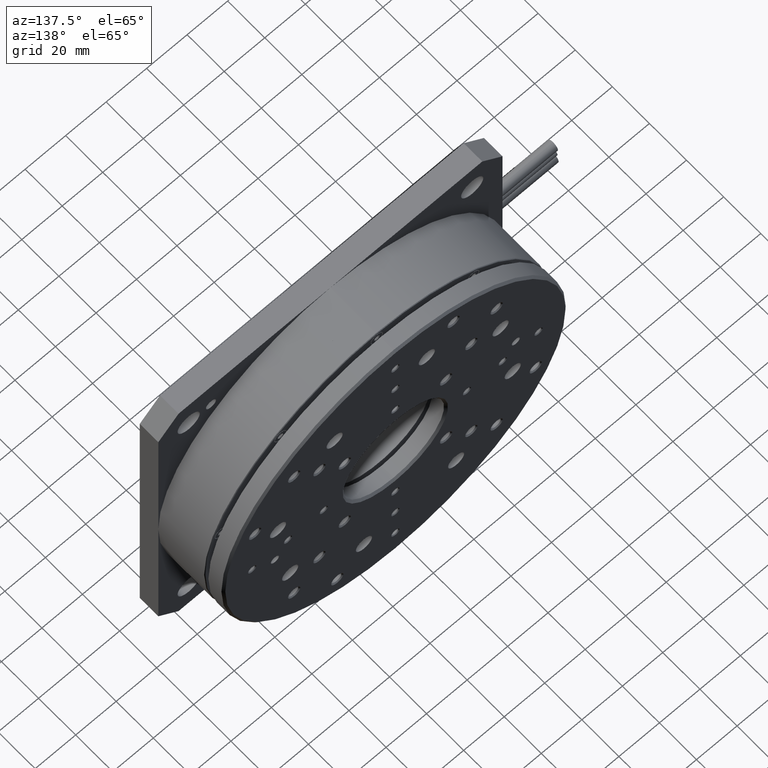
[diagram: clean part render]
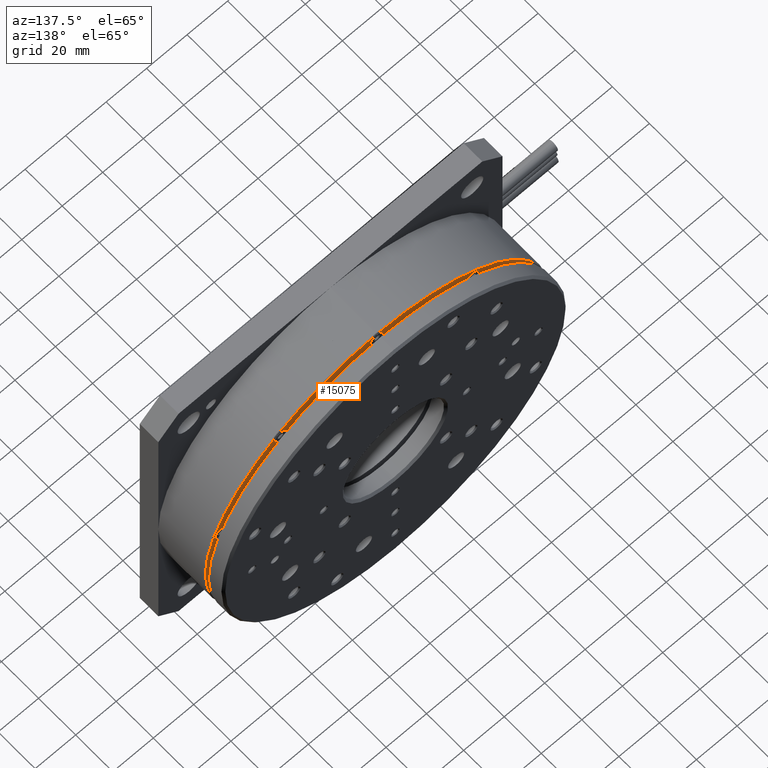
[diagram: same view with one face highlighted and labeled with its STEP entity id]
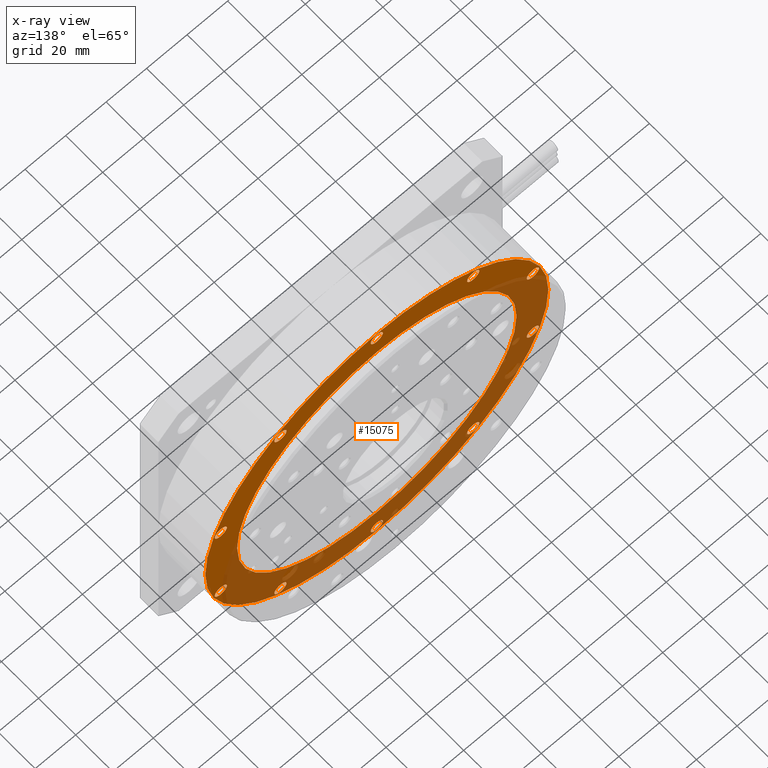
[diagram: x-ray of the same camera — body ghosted, the highlighted face saturated]
A machine part, auxiliary view. The second image highlights one B-rep face of the part: STEP entity #15075.
The next image is the same camera in x-ray: the body ghosted, the highlighted face saturated — about 53% of this face is hidden behind the body in this view.
In plain terms, the highlighted planar face has unit normal (0, 1, 0).
Its self-contained STEP definition (entity closure, byte-faithful):
#42 = CARTESIAN_POINT ( 'NONE',  ( 132.6106054356894800, 35.00000000000000000, 22.46962345562863900 ) ) ;
#114 = DIRECTION ( 'NONE',  ( 0.0000000000000000000, 0.0000000000000000000, 1.000000000000000000 ) ) ;
#166 = VERTEX_POINT ( 'NONE', #42 ) ;
#174 = ORIENTED_EDGE ( 'NONE', *, *, #9739, .T. ) ;
#188 = CARTESIAN_POINT ( 'NONE',  ( 37.38939456431005200, 35.00000000000000000, 150.5303765443710200 ) ) ;
#335 = EDGE_CURVE ( 'NONE', #166, #18073, #9037, .T. ) ;
#392 = DIRECTION ( 'NONE',  ( 0.0000000000000000000, -1.000000000000000000, 0.0000000000000000000 ) ) ;
#424 = CARTESIAN_POINT ( 'NONE',  ( 85.00000000000000000, 35.00000000000000700, 85.00000000000000000 ) ) ;
#625 = VERTEX_POINT ( 'NONE', #8596 ) ;
#654 = FACE_BOUND ( 'NONE', #20036, .T. ) ;
#681 = ORIENTED_EDGE ( 'NONE', *, *, #13291, .T. ) ;
#910 = AXIS2_PLACEMENT_3D ( 'NONE', #424, #9381, #7471 ) ;
#1043 = EDGE_LOOP ( 'NONE', ( #5700, #6435 ) ) ;
#1310 = CIRCLE ( 'NONE', #21538, 3.000000000000002700 ) ;
#1471 = CARTESIAN_POINT ( 'NONE',  ( 85.00000000000000000, 35.00000000000000000, 7.000000000000006200 ) ) ;
#1492 = AXIS2_PLACEMENT_3D ( 'NONE', #19620, #3647, #19853 ) ;
#1564 = DIRECTION ( 'NONE',  ( 0.0000000000000000000, 0.0000000000000000000, 1.000000000000000000 ) ) ;
#1711 = DIRECTION ( 'NONE',  ( 0.0000000000000000000, -1.000000000000000000, 0.0000000000000000000 ) ) ;
#1749 = CARTESIAN_POINT ( 'NONE',  ( 85.00000000000000000, 35.00000000000000000, 1.000000000000000900 ) ) ;
#1754 = CARTESIAN_POINT ( 'NONE',  ( 85.00000000000001400, 35.00000000000000000, 154.0000000000000000 ) ) ;
#1903 = EDGE_CURVE ( 'NONE', #13867, #19990, #15441, .T. ) ;
#1921 = CARTESIAN_POINT ( 'NONE',  ( 85.00000000000000000, 35.00000000000000700, 85.00000000000000000 ) ) ;
#1957 = CARTESIAN_POINT ( 'NONE',  ( 7.964422180092467900, 35.00000000000000000, 59.96962345562948100 ) ) ;
#2313 = CARTESIAN_POINT ( 'NONE',  ( 37.38939456430958300, 35.00000000000000000, 19.46962345562931800 ) ) ;
#2473 = CARTESIAN_POINT ( 'NONE',  ( 37.38939456431005200, 35.00000000000000000, 153.5303765443710200 ) ) ;
#2631 = EDGE_CURVE ( 'NONE', #13775, #10596, #12822, .T. ) ;
#2716 = DIRECTION ( 'NONE',  ( 0.0000000000000000000, -1.000000000000000000, 0.0000000000000000000 ) ) ;
#2752 = CARTESIAN_POINT ( 'NONE',  ( 162.0355778199071900, 35.00000000000000000, 56.96962345562838700 ) ) ;
#2755 = CARTESIAN_POINT ( 'NONE',  ( 85.00000000000000000, 35.00000000000000000, 4.000000000000003600 ) ) ;
#2836 = EDGE_CURVE ( 'NONE', #22200, #17229, #14220, .T. ) ;
#2863 = EDGE_LOOP ( 'NONE', ( #681, #14153 ) ) ;
#2969 = AXIS2_PLACEMENT_3D ( 'NONE', #3147, #19588, #8588 ) ;
#3147 = CARTESIAN_POINT ( 'NONE',  ( 37.38939456430958300, 35.00000000000000000, 19.46962345562931800 ) ) ;
#3180 = AXIS2_PLACEMENT_3D ( 'NONE', #5084, #14014, #8585 ) ;
#3451 = FACE_BOUND ( 'NONE', #19944, .T. ) ;
#3523 = DIRECTION ( 'NONE',  ( 0.0000000000000000000, 0.0000000000000000000, 1.000000000000000000 ) ) ;
#3609 = ORIENTED_EDGE ( 'NONE', *, *, #1903, .T. ) ;
#3647 = DIRECTION ( 'NONE',  ( -0.0000000000000000000, -1.000000000000000000, -0.0000000000000000000 ) ) ;
#3691 = DIRECTION ( 'NONE',  ( 0.0000000000000000000, 0.0000000000000000000, 1.000000000000000000 ) ) ;
#3854 = DIRECTION ( 'NONE',  ( 0.0000000000000000000, -1.000000000000000000, 0.0000000000000000000 ) ) ;
#3955 = CARTESIAN_POINT ( 'NONE',  ( 7.964422180092467900, 35.00000000000000000, 59.96962345562948100 ) ) ;
#3962 = CIRCLE ( 'NONE', #14630, 3.000000000000009800 ) ;
#4104 = DIRECTION ( 'NONE',  ( 0.0000000000000000000, 0.0000000000000000000, 1.000000000000000000 ) ) ;
#4278 = DIRECTION ( 'NONE',  ( 0.0000000000000000000, 0.0000000000000000000, 1.000000000000000000 ) ) ;
#4790 = CIRCLE ( 'NONE', #16994, 3.000000000000002700 ) ;
#4904 = AXIS2_PLACEMENT_3D ( 'NONE', #21470, #1711, #3691 ) ;
#5084 = CARTESIAN_POINT ( 'NONE',  ( 162.0355778199076700, 35.00000000000000000, 110.0303765443700000 ) ) ;
#5387 = CARTESIAN_POINT ( 'NONE',  ( 162.0355778199071900, 35.00000000000000000, 59.96962345562838700 ) ) ;
#5414 = FACE_BOUND ( 'NONE', #5505, .T. ) ;
#5476 = EDGE_CURVE ( 'NONE', #17229, #22200, #7657, .T. ) ;
#5505 = EDGE_LOOP ( 'NONE', ( #20101, #11369 ) ) ;
#5676 = FACE_BOUND ( 'NONE', #2863, .T. ) ;
#5700 = ORIENTED_EDGE ( 'NONE', *, *, #8466, .T. ) ;
#6019 = EDGE_CURVE ( 'NONE', #18073, #166, #16535, .T. ) ;
#6052 = DIRECTION ( 'NONE',  ( 0.0000000000000000000, -1.000000000000000000, 0.0000000000000000000 ) ) ;
#6079 = ORIENTED_EDGE ( 'NONE', *, *, #13419, .T. ) ;
#6124 = EDGE_CURVE ( 'NONE', #14083, #18327, #13635, .T. ) ;
#6176 = DIRECTION ( 'NONE',  ( -0.0000000000000000000, -1.000000000000000000, -0.0000000000000000000 ) ) ;
#6214 = DIRECTION ( 'NONE',  ( 0.0000000000000000000, -0.0000000000000000000, 1.000000000000000000 ) ) ;
#6281 = AXIS2_PLACEMENT_3D ( 'NONE', #1957, #3854, #7448 ) ;
#6365 = DIRECTION ( 'NONE',  ( 0.0000000000000000000, 0.0000000000000000000, 1.000000000000000000 ) ) ;
#6435 = ORIENTED_EDGE ( 'NONE', *, *, #15240, .T. ) ;
#6885 = CARTESIAN_POINT ( 'NONE',  ( 162.0355778199076700, 35.00000000000000000, 107.0303765443700000 ) ) ;
#7006 = ORIENTED_EDGE ( 'NONE', *, *, #2836, .T. ) ;
#7055 = CARTESIAN_POINT ( 'NONE',  ( 132.6106054356909300, 35.00000000000000000, 147.5303765443703400 ) ) ;
#7090 = DIRECTION ( 'NONE',  ( 0.0000000000000000000, 0.0000000000000000000, -1.000000000000000000 ) ) ;
#7101 = CIRCLE ( 'NONE', #910, 84.70000000000004500 ) ;
#7108 = CARTESIAN_POINT ( 'NONE',  ( 7.964422180092661600, 35.00000000000000000, 110.0303765443710900 ) ) ;
#7141 = CARTESIAN_POINT ( 'NONE',  ( 85.00000000000000000, 35.00000000000000000, 4.000000000000003600 ) ) ;
#7168 = CARTESIAN_POINT ( 'NONE',  ( 85.00000000000000000, 35.00000000000000000, 166.0000000000000000 ) ) ;
#7171 = ORIENTED_EDGE ( 'NONE', *, *, #14726, .F. ) ;
#7448 = DIRECTION ( 'NONE',  ( 0.0000000000000000000, 0.0000000000000000000, 1.000000000000000000 ) ) ;
#7471 = DIRECTION ( 'NONE',  ( 0.0000000000000000000, 0.0000000000000000000, -1.000000000000000000 ) ) ;
#7625 = ORIENTED_EDGE ( 'NONE', *, *, #21575, .T. ) ;
#7632 = CARTESIAN_POINT ( 'NONE',  ( 85.00000000000000000, 35.00000000000000000, 169.0000000000000000 ) ) ;
#7657 = CIRCLE ( 'NONE', #1492, 68.99999999999998600 ) ;
#7717 = AXIS2_PLACEMENT_3D ( 'NONE', #16592, #6176, #18416 ) ;
#7724 = CIRCLE ( 'NONE', #15640, 3.000000000000002700 ) ;
#7859 = DIRECTION ( 'NONE',  ( 0.0000000000000000000, -1.000000000000000000, 0.0000000000000000000 ) ) ;
#7997 = EDGE_CURVE ( 'NONE', #10596, #13775, #16032, .T. ) ;
#8054 = CARTESIAN_POINT ( 'NONE',  ( 162.0355778199076700, 35.00000000000000000, 113.0303765443700100 ) ) ;
#8256 = VERTEX_POINT ( 'NONE', #2752 ) ;
#8466 = EDGE_CURVE ( 'NONE', #15475, #8256, #3962, .T. ) ;
#8469 = EDGE_LOOP ( 'NONE', ( #9625, #3609 ) ) ;
#8525 = CIRCLE ( 'NONE', #18114, 3.000000000000002700 ) ;
#8585 = DIRECTION ( 'NONE',  ( 0.0000000000000000000, 0.0000000000000000000, 1.000000000000000000 ) ) ;
#8588 = DIRECTION ( 'NONE',  ( 0.0000000000000000000, 0.0000000000000000000, 1.000000000000000000 ) ) ;
#8596 = CARTESIAN_POINT ( 'NONE',  ( 85.00000000000000000, 35.00000000000000000, 163.0000000000000000 ) ) ;
#8654 = CARTESIAN_POINT ( 'NONE',  ( 37.38939456430958300, 35.00000000000000000, 16.46962345562931400 ) ) ;
#8662 = ORIENTED_EDGE ( 'NONE', *, *, #5476, .T. ) ;
#8929 = CARTESIAN_POINT ( 'NONE',  ( 85.00000000000000000, 35.00000000000000700, 0.2999999999999669600 ) ) ;
#8949 = AXIS2_PLACEMENT_3D ( 'NONE', #2755, #16923, #13232 ) ;
#9037 = CIRCLE ( 'NONE', #16615, 3.000000000000002700 ) ;
#9250 = EDGE_LOOP ( 'NONE', ( #19105, #16647 ) ) ;
#9381 = DIRECTION ( 'NONE',  ( 0.0000000000000000000, -1.000000000000000000, 0.0000000000000000000 ) ) ;
#9526 = ORIENTED_EDGE ( 'NONE', *, *, #6124, .T. ) ;
#9625 = ORIENTED_EDGE ( 'NONE', *, *, #9914, .T. ) ;
#9734 = VERTEX_POINT ( 'NONE', #6885 ) ;
#9739 = EDGE_CURVE ( 'NONE', #11522, #23106, #14476, .T. ) ;
#9888 = ORIENTED_EDGE ( 'NONE', *, *, #6019, .T. ) ;
#9914 = EDGE_CURVE ( 'NONE', #19990, #13867, #17285, .T. ) ;
#10196 = CARTESIAN_POINT ( 'NONE',  ( 132.6106054356909300, 35.00000000000000000, 150.5303765443703400 ) ) ;
#10427 = DIRECTION ( 'NONE',  ( 0.0000000000000000000, 0.0000000000000000000, 1.000000000000000000 ) ) ;
#10596 = VERTEX_POINT ( 'NONE', #2473 ) ;
#10792 = DIRECTION ( 'NONE',  ( 0.0000000000000000000, -1.000000000000000000, 0.0000000000000000000 ) ) ;
#10801 = VERTEX_POINT ( 'NONE', #21085 ) ;
#10824 = ORIENTED_EDGE ( 'NONE', *, *, #2631, .T. ) ;
#10841 = DIRECTION ( 'NONE',  ( 0.0000000000000000000, 0.0000000000000000000, 1.000000000000000000 ) ) ;
#10920 = CARTESIAN_POINT ( 'NONE',  ( 37.38939456430958300, 35.00000000000000000, 22.46962345562932100 ) ) ;
#10940 = CIRCLE ( 'NONE', #8949, 3.000000000000002700 ) ;
#10991 = CARTESIAN_POINT ( 'NONE',  ( 132.6106054356894800, 35.00000000000000000, 19.46962345562863600 ) ) ;
#11369 = ORIENTED_EDGE ( 'NONE', *, *, #21112, .T. ) ;
#11412 = AXIS2_PLACEMENT_3D ( 'NONE', #21655, #10792, #19778 ) ;
#11522 = VERTEX_POINT ( 'NONE', #8654 ) ;
#11634 = ORIENTED_EDGE ( 'NONE', *, *, #7997, .T. ) ;
#11898 = DIRECTION ( 'NONE',  ( 0.0000000000000000000, -1.000000000000000000, 0.0000000000000000000 ) ) ;
#11975 = EDGE_LOOP ( 'NONE', ( #11634, #10824 ) ) ;
#12227 = EDGE_CURVE ( 'NONE', #12654, #22406, #7724, .T. ) ;
#12546 = DIRECTION ( 'NONE',  ( 0.0000000000000000000, -1.000000000000000000, 0.0000000000000000000 ) ) ;
#12654 = VERTEX_POINT ( 'NONE', #1471 ) ;
#12664 = AXIS2_PLACEMENT_3D ( 'NONE', #7108, #12758, #14471 ) ;
#12716 = EDGE_CURVE ( 'NONE', #23118, #10801, #13511, .T. ) ;
#12734 = CIRCLE ( 'NONE', #15585, 84.70000000000004500 ) ;
#12758 = DIRECTION ( 'NONE',  ( 0.0000000000000000000, -1.000000000000000000, 0.0000000000000000000 ) ) ;
#12822 = CIRCLE ( 'NONE', #18957, 3.000000000000002700 ) ;
#13048 = VERTEX_POINT ( 'NONE', #8054 ) ;
#13063 = DIRECTION ( 'NONE',  ( 0.0000000000000000000, 0.0000000000000000000, 1.000000000000000000 ) ) ;
#13183 = CARTESIAN_POINT ( 'NONE',  ( 85.00000000000000000, 35.00000000000000000, 85.00000000000000000 ) ) ;
#13232 = DIRECTION ( 'NONE',  ( 0.0000000000000000000, 0.0000000000000000000, 1.000000000000000000 ) ) ;
#13256 = FACE_BOUND ( 'NONE', #9250, .T. ) ;
#13291 = EDGE_CURVE ( 'NONE', #15373, #625, #15985, .T. ) ;
#13339 = PLANE ( 'NONE',  #21895 ) ;
#13344 = CARTESIAN_POINT ( 'NONE',  ( 132.6106054356909300, 35.00000000000000000, 153.5303765443703400 ) ) ;
#13419 = EDGE_CURVE ( 'NONE', #23106, #11522, #20189, .T. ) ;
#13511 = CIRCLE ( 'NONE', #12664, 3.000000000000002700 ) ;
#13635 = CIRCLE ( 'NONE', #6281, 3.000000000000002700 ) ;
#13775 = VERTEX_POINT ( 'NONE', #19361 ) ;
#13867 = VERTEX_POINT ( 'NONE', #7055 ) ;
#14014 = DIRECTION ( 'NONE',  ( 0.0000000000000000000, -1.000000000000000000, 0.0000000000000000000 ) ) ;
#14083 = VERTEX_POINT ( 'NONE', #18803 ) ;
#14153 = ORIENTED_EDGE ( 'NONE', *, *, #22047, .T. ) ;
#14220 = CIRCLE ( 'NONE', #7717, 68.99999999999998600 ) ;
#14345 = DIRECTION ( 'NONE',  ( 0.0000000000000000000, 0.0000000000000000000, 1.000000000000000000 ) ) ;
#14388 = FACE_OUTER_BOUND ( 'NONE', #17587, .T. ) ;
#14428 = DIRECTION ( 'NONE',  ( 0.0000000000000000000, -1.000000000000000000, 0.0000000000000000000 ) ) ;
#14471 = DIRECTION ( 'NONE',  ( 0.0000000000000000000, 0.0000000000000000000, 1.000000000000000000 ) ) ;
#14476 = CIRCLE ( 'NONE', #2969, 3.000000000000002700 ) ;
#14630 = AXIS2_PLACEMENT_3D ( 'NONE', #5387, #23188, #3523 ) ;
#14657 = FACE_BOUND ( 'NONE', #15727, .T. ) ;
#14726 = EDGE_CURVE ( 'NONE', #15532, #19021, #12734, .T. ) ;
#14864 = AXIS2_PLACEMENT_3D ( 'NONE', #10196, #11898, #10427 ) ;
#15075 = ADVANCED_FACE ( 'NONE', ( #3451, #16338, #14657, #654, #5414, #22232, #5676, #17449, #13256, #19147, #18306, #14388 ), #13339, .T. ) ;
#15240 = EDGE_CURVE ( 'NONE', #8256, #15475, #17173, .T. ) ;
#15248 = CARTESIAN_POINT ( 'NONE',  ( 85.00000000000001400, 35.00000000000000700, 169.7000000000000200 ) ) ;
#15373 = VERTEX_POINT ( 'NONE', #7632 ) ;
#15441 = CIRCLE ( 'NONE', #14864, 3.000000000000002700 ) ;
#15475 = VERTEX_POINT ( 'NONE', #19093 ) ;
#15532 = VERTEX_POINT ( 'NONE', #15248 ) ;
#15559 = ORIENTED_EDGE ( 'NONE', *, *, #19163, .T. ) ;
#15585 = AXIS2_PLACEMENT_3D ( 'NONE', #1921, #17815, #7090 ) ;
#15640 = AXIS2_PLACEMENT_3D ( 'NONE', #7141, #12546, #14345 ) ;
#15727 = EDGE_LOOP ( 'NONE', ( #6079, #174 ) ) ;
#15949 = CARTESIAN_POINT ( 'NONE',  ( 7.964422180092467900, 35.00000000000000000, 62.96962345562948100 ) ) ;
#15985 = CIRCLE ( 'NONE', #17017, 3.000000000000002700 ) ;
#16032 = CIRCLE ( 'NONE', #19575, 3.000000000000002700 ) ;
#16327 = DIRECTION ( 'NONE',  ( 0.0000000000000000000, 0.0000000000000000000, 1.000000000000000000 ) ) ;
#16338 = FACE_BOUND ( 'NONE', #18995, .T. ) ;
#16368 = DIRECTION ( 'NONE',  ( 0.0000000000000000000, -1.000000000000000000, 0.0000000000000000000 ) ) ;
#16535 = CIRCLE ( 'NONE', #20585, 3.000000000000002700 ) ;
#16592 = CARTESIAN_POINT ( 'NONE',  ( 85.00000000000000000, 35.00000000000000000, 85.00000000000000000 ) ) ;
#16615 = AXIS2_PLACEMENT_3D ( 'NONE', #18822, #17095, #6365 ) ;
#16647 = ORIENTED_EDGE ( 'NONE', *, *, #20616, .T. ) ;
#16878 = CIRCLE ( 'NONE', #3180, 3.000000000000002700 ) ;
#16923 = DIRECTION ( 'NONE',  ( 0.0000000000000000000, -1.000000000000000000, 0.0000000000000000000 ) ) ;
#16994 = AXIS2_PLACEMENT_3D ( 'NONE', #20283, #392, #13063 ) ;
#17017 = AXIS2_PLACEMENT_3D ( 'NONE', #7168, #18047, #16327 ) ;
#17095 = DIRECTION ( 'NONE',  ( 0.0000000000000000000, -1.000000000000000000, 0.0000000000000000000 ) ) ;
#17173 = CIRCLE ( 'NONE', #11412, 3.000000000000009800 ) ;
#17229 = VERTEX_POINT ( 'NONE', #1754 ) ;
#17285 = CIRCLE ( 'NONE', #4904, 3.000000000000002700 ) ;
#17449 = FACE_BOUND ( 'NONE', #8469, .T. ) ;
#17587 = EDGE_LOOP ( 'NONE', ( #18498, #7171 ) ) ;
#17764 = AXIS2_PLACEMENT_3D ( 'NONE', #2313, #6052, #22041 ) ;
#17815 = DIRECTION ( 'NONE',  ( 0.0000000000000000000, -1.000000000000000000, 0.0000000000000000000 ) ) ;
#18047 = DIRECTION ( 'NONE',  ( 0.0000000000000000000, -1.000000000000000000, 0.0000000000000000000 ) ) ;
#18073 = VERTEX_POINT ( 'NONE', #22319 ) ;
#18114 = AXIS2_PLACEMENT_3D ( 'NONE', #3955, #18363, #4104 ) ;
#18306 = FACE_BOUND ( 'NONE', #21376, .T. ) ;
#18327 = VERTEX_POINT ( 'NONE', #15949 ) ;
#18363 = DIRECTION ( 'NONE',  ( 0.0000000000000000000, -1.000000000000000000, 0.0000000000000000000 ) ) ;
#18416 = DIRECTION ( 'NONE',  ( 0.0000000000000000000, 0.0000000000000000000, -1.000000000000000000 ) ) ;
#18498 = ORIENTED_EDGE ( 'NONE', *, *, #20579, .F. ) ;
#18584 = CARTESIAN_POINT ( 'NONE',  ( 162.0355778199076700, 35.00000000000000000, 110.0303765443700000 ) ) ;
#18625 = CARTESIAN_POINT ( 'NONE',  ( 85.00000000000000000, 35.00000000000000000, 166.0000000000000000 ) ) ;
#18803 = CARTESIAN_POINT ( 'NONE',  ( 7.964422180092467900, 35.00000000000000000, 56.96962345562947400 ) ) ;
#18822 = CARTESIAN_POINT ( 'NONE',  ( 132.6106054356894800, 35.00000000000000000, 19.46962345562863600 ) ) ;
#18921 = CARTESIAN_POINT ( 'NONE',  ( 85.00000000000000000, 35.00000000000000000, 16.00000000000001400 ) ) ;
#18957 = AXIS2_PLACEMENT_3D ( 'NONE', #23121, #19439, #1564 ) ;
#18995 = EDGE_LOOP ( 'NONE', ( #22589, #7625 ) ) ;
#19021 = VERTEX_POINT ( 'NONE', #8929 ) ;
#19093 = CARTESIAN_POINT ( 'NONE',  ( 162.0355778199071900, 35.00000000000000000, 62.96962345562840100 ) ) ;
#19105 = ORIENTED_EDGE ( 'NONE', *, *, #20894, .T. ) ;
#19147 = FACE_BOUND ( 'NONE', #1043, .T. ) ;
#19163 = EDGE_CURVE ( 'NONE', #18327, #14083, #8525, .T. ) ;
#19361 = CARTESIAN_POINT ( 'NONE',  ( 37.38939456431005200, 35.00000000000000000, 147.5303765443710200 ) ) ;
#19439 = DIRECTION ( 'NONE',  ( 0.0000000000000000000, -1.000000000000000000, 0.0000000000000000000 ) ) ;
#19575 = AXIS2_PLACEMENT_3D ( 'NONE', #188, #14428, #114 ) ;
#19588 = DIRECTION ( 'NONE',  ( 0.0000000000000000000, -1.000000000000000000, 0.0000000000000000000 ) ) ;
#19620 = CARTESIAN_POINT ( 'NONE',  ( 85.00000000000000000, 35.00000000000000000, 85.00000000000000000 ) ) ;
#19778 = DIRECTION ( 'NONE',  ( 0.0000000000000000000, 0.0000000000000000000, 1.000000000000000000 ) ) ;
#19853 = DIRECTION ( 'NONE',  ( 0.0000000000000000000, 0.0000000000000000000, -1.000000000000000000 ) ) ;
#19944 = EDGE_LOOP ( 'NONE', ( #7006, #8662 ) ) ;
#19990 = VERTEX_POINT ( 'NONE', #13344 ) ;
#20036 = EDGE_LOOP ( 'NONE', ( #15559, #9526 ) ) ;
#20101 = ORIENTED_EDGE ( 'NONE', *, *, #12716, .T. ) ;
#20189 = CIRCLE ( 'NONE', #17764, 3.000000000000002700 ) ;
#20283 = CARTESIAN_POINT ( 'NONE',  ( 7.964422180092661600, 35.00000000000000000, 110.0303765443710900 ) ) ;
#20487 = DIRECTION ( 'NONE',  ( 0.0000000000000000000, 1.000000000000000000, 0.0000000000000000000 ) ) ;
#20525 = CARTESIAN_POINT ( 'NONE',  ( 7.964422180092661600, 35.00000000000000000, 113.0303765443710900 ) ) ;
#20541 = DIRECTION ( 'NONE',  ( 0.0000000000000000000, 0.0000000000000000000, 1.000000000000000000 ) ) ;
#20579 = EDGE_CURVE ( 'NONE', #19021, #15532, #7101, .T. ) ;
#20585 = AXIS2_PLACEMENT_3D ( 'NONE', #10991, #16368, #10841 ) ;
#20616 = EDGE_CURVE ( 'NONE', #9734, #13048, #21409, .T. ) ;
#20894 = EDGE_CURVE ( 'NONE', #13048, #9734, #16878, .T. ) ;
#20905 = ORIENTED_EDGE ( 'NONE', *, *, #335, .T. ) ;
#21085 = CARTESIAN_POINT ( 'NONE',  ( 7.964422180092661600, 35.00000000000000000, 107.0303765443710800 ) ) ;
#21112 = EDGE_CURVE ( 'NONE', #10801, #23118, #4790, .T. ) ;
#21376 = EDGE_LOOP ( 'NONE', ( #20905, #9888 ) ) ;
#21409 = CIRCLE ( 'NONE', #22348, 3.000000000000002700 ) ;
#21470 = CARTESIAN_POINT ( 'NONE',  ( 132.6106054356909300, 35.00000000000000000, 150.5303765443703400 ) ) ;
#21538 = AXIS2_PLACEMENT_3D ( 'NONE', #18625, #2716, #4278 ) ;
#21575 = EDGE_CURVE ( 'NONE', #22406, #12654, #10940, .T. ) ;
#21655 = CARTESIAN_POINT ( 'NONE',  ( 162.0355778199071900, 35.00000000000000000, 59.96962345562838700 ) ) ;
#21895 = AXIS2_PLACEMENT_3D ( 'NONE', #13183, #20487, #6214 ) ;
#22041 = DIRECTION ( 'NONE',  ( 0.0000000000000000000, 0.0000000000000000000, 1.000000000000000000 ) ) ;
#22047 = EDGE_CURVE ( 'NONE', #625, #15373, #1310, .T. ) ;
#22200 = VERTEX_POINT ( 'NONE', #18921 ) ;
#22232 = FACE_BOUND ( 'NONE', #11975, .T. ) ;
#22319 = CARTESIAN_POINT ( 'NONE',  ( 132.6106054356894800, 35.00000000000000000, 16.46962345562863600 ) ) ;
#22348 = AXIS2_PLACEMENT_3D ( 'NONE', #18584, #7859, #20541 ) ;
#22406 = VERTEX_POINT ( 'NONE', #1749 ) ;
#22589 = ORIENTED_EDGE ( 'NONE', *, *, #12227, .T. ) ;
#23106 = VERTEX_POINT ( 'NONE', #10920 ) ;
#23118 = VERTEX_POINT ( 'NONE', #20525 ) ;
#23121 = CARTESIAN_POINT ( 'NONE',  ( 37.38939456431005200, 35.00000000000000000, 150.5303765443710200 ) ) ;
#23188 = DIRECTION ( 'NONE',  ( 0.0000000000000000000, -1.000000000000000000, 0.0000000000000000000 ) ) ;